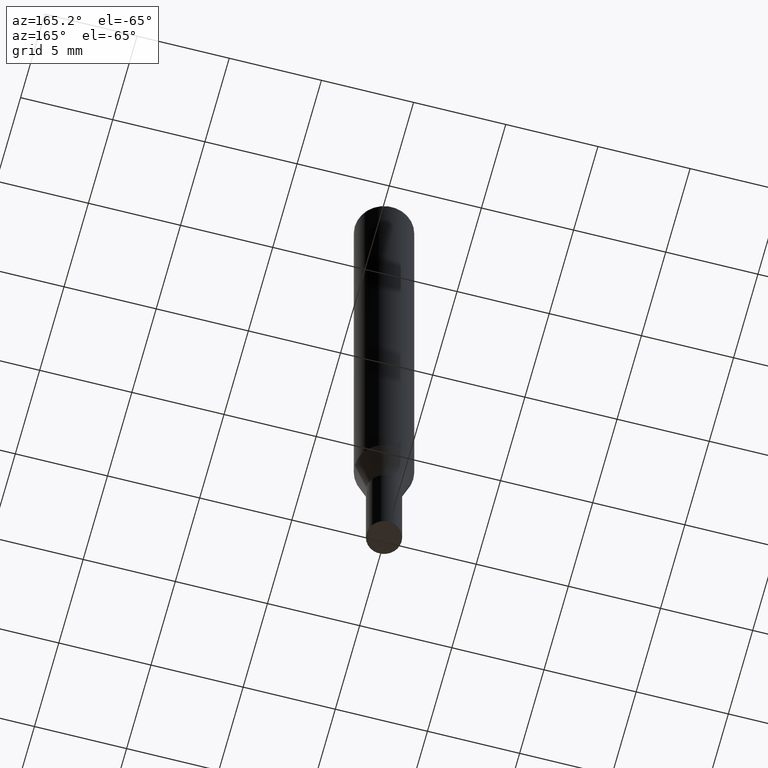
[diagram: clean part render]
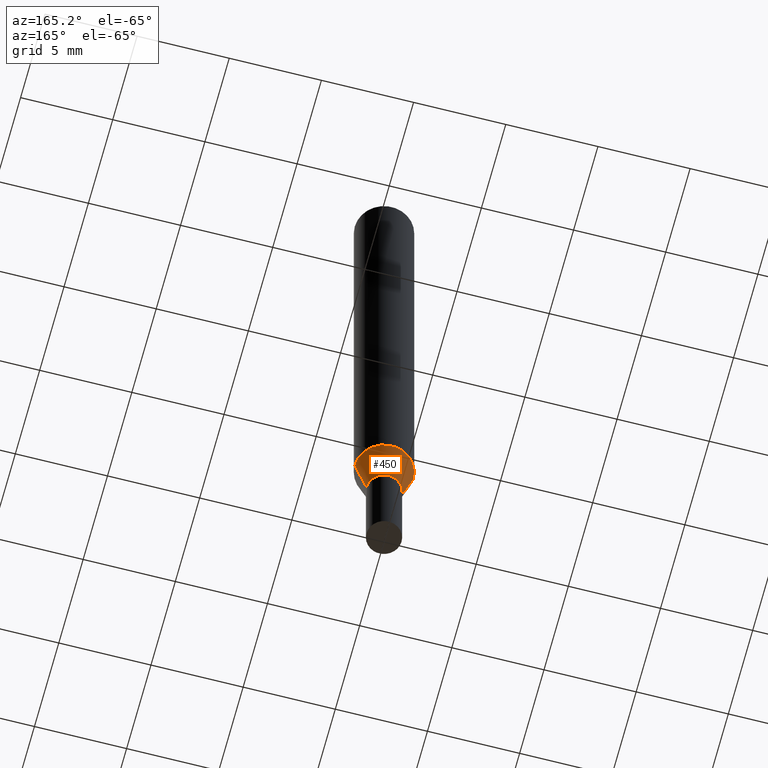
[diagram: same view with one face highlighted and labeled with its STEP entity id]
A machine part, auxiliary view. The second image highlights one B-rep face of the part: STEP entity #450.
In plain terms, the highlighted conical surface has half-angle 15 deg.
Its self-contained STEP definition (entity closure, byte-faithful):
#40 = EDGE_CURVE ( 'NONE', #318, #376, #114, .T. ) ;
#45 = ORIENTED_EDGE ( 'NONE', *, *, #109, .T. ) ;
#74 = LINE ( 'NONE', #182, #426 ) ;
#75 = EDGE_CURVE ( 'NONE', #86, #376, #74, .T. ) ;
#80 = ORIENTED_EDGE ( 'NONE', *, *, #398, .F. ) ;
#86 = VERTEX_POINT ( 'NONE', #437 ) ;
#101 = FACE_OUTER_BOUND ( 'NONE', #157, .T. ) ;
#109 = EDGE_CURVE ( 'NONE', #458, #86, #287, .T. ) ;
#114 = CIRCLE ( 'NONE', #271, 0.06250000000000000000 ) ;
#117 = AXIS2_PLACEMENT_3D ( 'NONE', #440, #217, #371 ) ;
#132 = DIRECTION ( 'NONE',  ( 1.000000000000000000, -6.982962677686257244E-15, 0.000000000000000000 ) ) ;
#137 = LINE ( 'NONE', #363, #155 ) ;
#138 = DIRECTION ( 'NONE',  ( -2.445468806185136597E-29, 3.491481338843145583E-15, 1.000000000000000000 ) ) ;
#155 = VECTOR ( 'NONE', #360, 39.37007874015748143 ) ;
#157 = EDGE_LOOP ( 'NONE', ( #45, #234, #355, #80 ) ) ;
#162 = CARTESIAN_POINT ( 'NONE',  ( 2.889807382060858939E-29, -4.125879063268984443E-15, -1.181698729810779280 ) ) ;
#172 = CARTESIAN_POINT ( 'NONE',  ( -0.06250000000000000000, -3.681789853418921827E-15, -1.181698729810779280 ) ) ;
#181 = CONICAL_SURFACE ( 'NONE', #452, 0.03750000000000019984, 0.2617993877991502960 ) ;
#182 = CARTESIAN_POINT ( 'NONE',  ( -0.03750000000000019984, -4.185185181114972604E-15, -1.275000000000000133 ) ) ;
#199 = CARTESIAN_POINT ( 'NONE',  ( 3.117972727886049049E-29, -4.451638707025011594E-15, -1.275000000000000133 ) ) ;
#215 = DIRECTION ( 'NONE',  ( -0.2588190451025216277, 5.211531920934551831E-15, 0.9659258262890679791 ) ) ;
#217 = DIRECTION ( 'NONE',  ( -2.445468806185136597E-29, 3.491481338843145583E-15, 1.000000000000000000 ) ) ;
#234 = ORIENTED_EDGE ( 'NONE', *, *, #75, .T. ) ;
#271 = AXIS2_PLACEMENT_3D ( 'NONE', #162, #275, #383 ) ;
#275 = DIRECTION ( 'NONE',  ( -2.445468806185136597E-29, 3.491481338843145583E-15, 1.000000000000000000 ) ) ;
#287 = CIRCLE ( 'NONE', #117, 0.03750000000000019984 ) ;
#318 = VERTEX_POINT ( 'NONE', #322 ) ;
#322 = CARTESIAN_POINT ( 'NONE',  ( 0.06250000000000000000, -4.562314230624376113E-15, -1.181698729810779280 ) ) ;
#355 = ORIENTED_EDGE ( 'NONE', *, *, #40, .F. ) ;
#360 = DIRECTION ( 'NONE',  ( 0.2588190451025216277, 1.565188264969619995E-15, 0.9659258262890679791 ) ) ;
#363 = CARTESIAN_POINT ( 'NONE',  ( 0.03750000000000019984, -4.713499807438247385E-15, -1.275000000000000133 ) ) ;
#371 = DIRECTION ( 'NONE',  ( 1.000000000000000000, -6.982962677686257244E-15, 0.000000000000000000 ) ) ;
#376 = VERTEX_POINT ( 'NONE', #172 ) ;
#383 = DIRECTION ( 'NONE',  ( 1.000000000000000000, -6.982962677686262766E-15, 0.000000000000000000 ) ) ;
#395 = CARTESIAN_POINT ( 'NONE',  ( 0.03750000000000019984, -4.713499807438247385E-15, -1.275000000000000133 ) ) ;
#398 = EDGE_CURVE ( 'NONE', #458, #318, #137, .T. ) ;
#426 = VECTOR ( 'NONE', #215, 39.37007874015748143 ) ;
#437 = CARTESIAN_POINT ( 'NONE',  ( -0.03750000000000019984, -3.933487517266947610E-15, -1.275000000000000133 ) ) ;
#440 = CARTESIAN_POINT ( 'NONE',  ( 3.117972727886049049E-29, -4.451638707025011594E-15, -1.275000000000000133 ) ) ;
#450 = ADVANCED_FACE ( 'NONE', ( #101 ), #181, .T. ) ;
#452 = AXIS2_PLACEMENT_3D ( 'NONE', #199, #138, #132 ) ;
#458 = VERTEX_POINT ( 'NONE', #395 ) ;